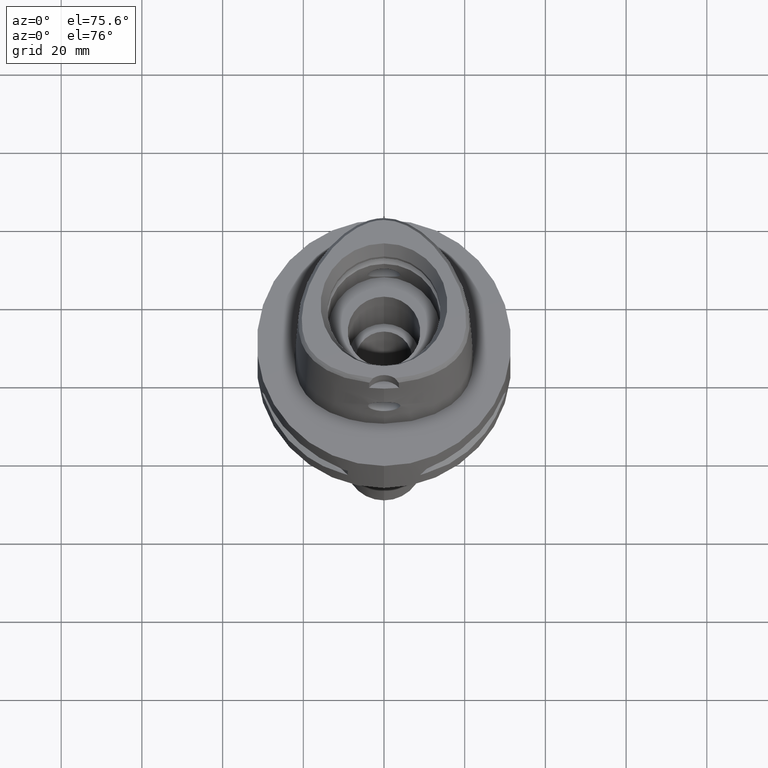
[diagram: clean part render]
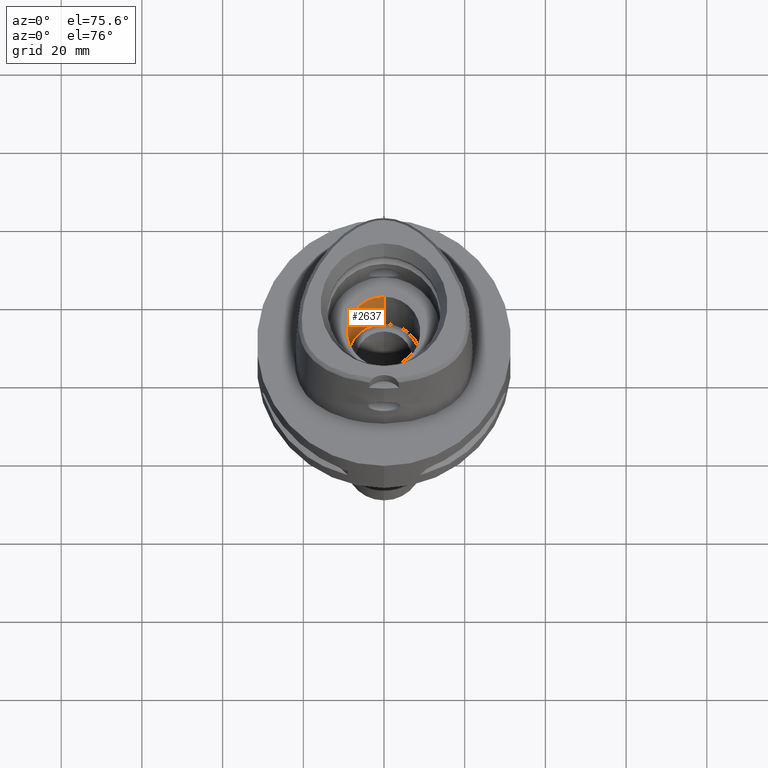
[diagram: same view with one face highlighted and labeled with its STEP entity id]
A machine part, auxiliary view. The second image highlights one B-rep face of the part: STEP entity #2637.
In plain terms, the highlighted cylindrical surface (edge-blend (fillet) strip) has radius 9 mm, axis along (0, 0, -1).
Its self-contained STEP definition (entity closure, byte-faithful):
#756=CARTESIAN_POINT('',(0.E0,0.E0,-1.6E1));
#757=DIRECTION('',(0.E0,0.E0,-1.E0));
#758=DIRECTION('',(0.E0,-1.E0,0.E0));
#759=AXIS2_PLACEMENT_3D('',#756,#757,#758);
#788=DIRECTION('',(0.E0,0.E0,-1.E0));
#789=VECTOR('',#788,2.7E1);
#790=CARTESIAN_POINT('',(0.E0,-9.E0,1.1E1));
#791=LINE('',#790,#789);
#795=DIRECTION('',(0.E0,0.E0,1.E0));
#796=VECTOR('',#795,2.7E1);
#797=CARTESIAN_POINT('',(0.E0,9.E0,-1.6E1));
#798=LINE('',#797,#796);
#818=CARTESIAN_POINT('',(0.E0,0.E0,1.1E1));
#819=DIRECTION('',(0.E0,0.E0,1.E0));
#820=DIRECTION('',(0.E0,1.E0,0.E0));
#821=AXIS2_PLACEMENT_3D('',#818,#819,#820);
#1568=CARTESIAN_POINT('',(0.E0,-9.E0,-1.6E1));
#1569=CARTESIAN_POINT('',(0.E0,9.E0,-1.6E1));
#1570=VERTEX_POINT('',#1568);
#1571=VERTEX_POINT('',#1569);
#1572=CARTESIAN_POINT('',(0.E0,9.E0,1.1E1));
#1573=VERTEX_POINT('',#1572);
#1574=CARTESIAN_POINT('',(0.E0,-9.E0,1.1E1));
#1575=VERTEX_POINT('',#1574);
#2623=CARTESIAN_POINT('',(0.E0,0.E0,3.99E1));
#2624=DIRECTION('',(0.E0,0.E0,-1.E0));
#2625=DIRECTION('',(0.E0,-1.E0,0.E0));
#2626=AXIS2_PLACEMENT_3D('',#2623,#2624,#2625);
#2627=CYLINDRICAL_SURFACE('',#2626,9.E0);
#2629=ORIENTED_EDGE('',*,*,#2628,.F.);
#2630=ORIENTED_EDGE('',*,*,#2612,.F.);
#2632=ORIENTED_EDGE('',*,*,#2631,.F.);
#2634=ORIENTED_EDGE('',*,*,#2633,.F.);
#2635=EDGE_LOOP('',(#2629,#2630,#2632,#2634));
#2636=FACE_OUTER_BOUND('',#2635,.F.);
#760=CIRCLE('',#759,9.E0);
#822=CIRCLE('',#821,9.E0);
#2612=EDGE_CURVE('',#1570,#1571,#760,.T.);
#2628=EDGE_CURVE('',#1571,#1573,#798,.T.);
#2631=EDGE_CURVE('',#1575,#1570,#791,.T.);
#2633=EDGE_CURVE('',#1573,#1575,#822,.T.);
#2637=ADVANCED_FACE('',(#2636),#2627,.F.);